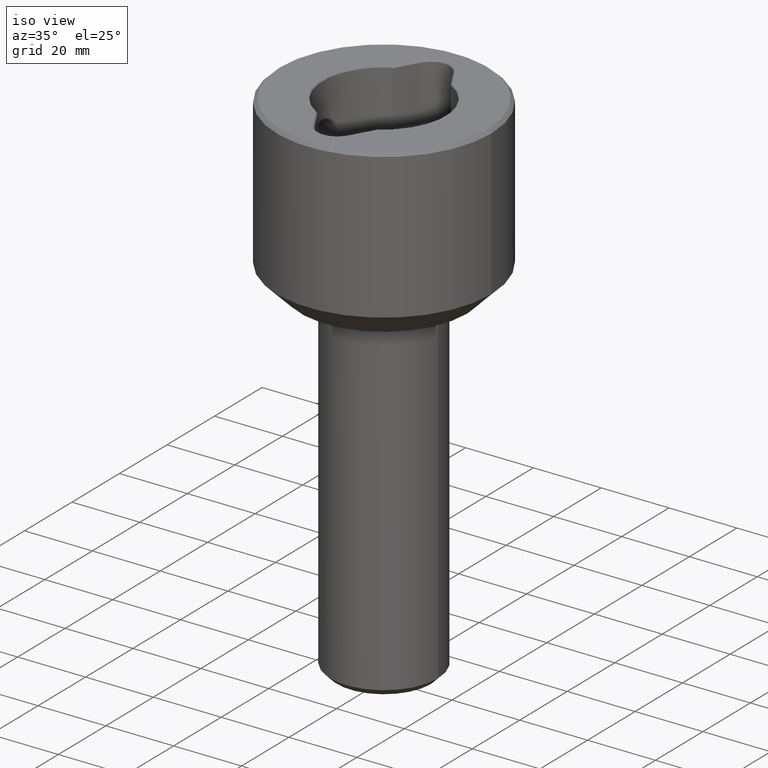
[diagram: clean part render]
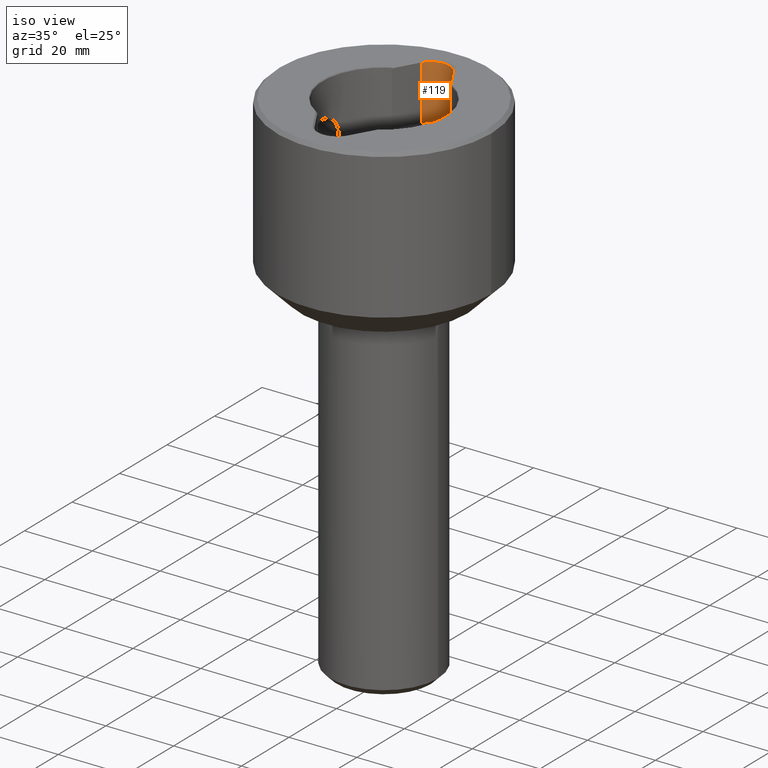
[diagram: same view with one face highlighted and labeled with its STEP entity id]
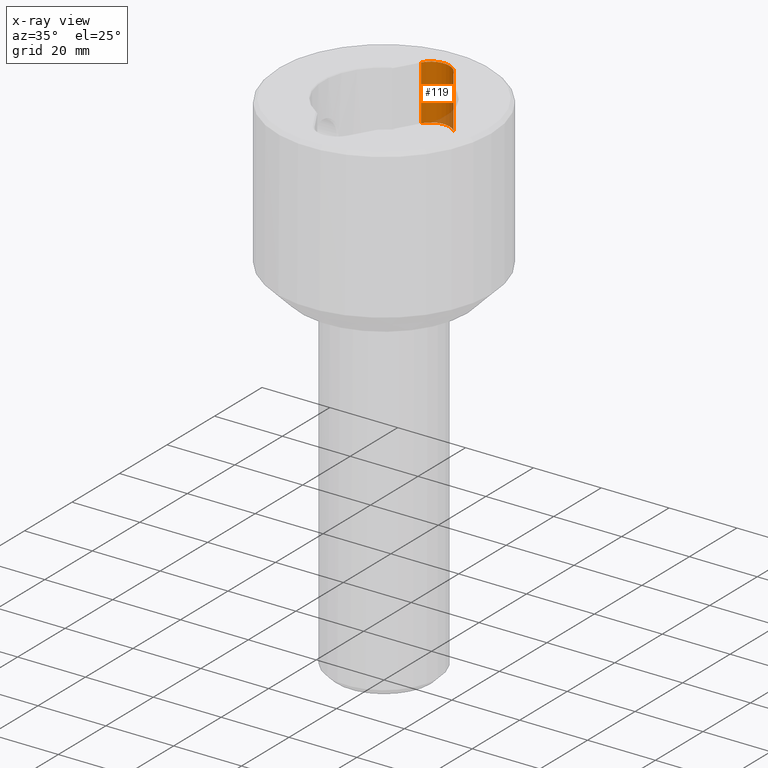
[diagram: x-ray of the same camera — body ghosted, the highlighted face saturated]
A machine part, iso view. The second image highlights one B-rep face of the part: STEP entity #119.
The next image is the same camera in x-ray: the body ghosted, the highlighted face saturated — about 8% of this face is hidden behind the body in this view.
In plain terms, the highlighted cylindrical surface (edge-blend (fillet) strip) has radius 5.5 mm, axis along (-0, -0, 1).
Its self-contained STEP definition (entity closure, byte-faithful):
#85 = EDGE_CURVE ( 'NONE', #1120, #1266, #1155, .T. ) ;
#119 = ADVANCED_FACE ( 'NONE', ( #602 ), #1711, .F. ) ;
#138 = EDGE_CURVE ( 'NONE', #1329, #1120, #1478, .T. ) ;
#237 = DIRECTION ( 'NONE',  ( -1.000000000000000000, 0.0000000000000000000, 0.0000000000000000000 ) ) ;
#274 = CARTESIAN_POINT ( 'NONE',  ( 4.763139720814414169, 22.45000000000001705, -16.60000000005684484 ) ) ;
#294 = EDGE_CURVE ( 'NONE', #1329, #1458, #484, .T. ) ;
#351 = ORIENTED_EDGE ( 'NONE', *, *, #888, .F. ) ;
#355 = CARTESIAN_POINT ( 'NONE',  ( -8.673617379884035472E-15, 19.70000000000003837, -0.4000000000568444403 ) ) ;
#411 = ORIENTED_EDGE ( 'NONE', *, *, #138, .T. ) ;
#474 = DIRECTION ( 'NONE',  ( -0.0000000000000000000, -0.0000000000000000000, 1.000000000000000000 ) ) ;
#484 = CIRCLE ( 'NONE', #975, 5.500000000000000000 ) ;
#526 = VECTOR ( 'NONE', #1407, 1000.000000000000000 ) ;
#568 = EDGE_LOOP ( 'NONE', ( #411, #1079, #351, #967 ) ) ;
#592 = DIRECTION ( 'NONE',  ( 1.000000000000000000, 0.0000000000000000000, 0.0000000000000000000 ) ) ;
#602 = FACE_OUTER_BOUND ( 'NONE', #568, .T. ) ;
#636 = CARTESIAN_POINT ( 'NONE',  ( -4.763139720814429268, 22.45000000000001705, -16.60000000005684484 ) ) ;
#733 = CARTESIAN_POINT ( 'NONE',  ( 4.763139720814414169, 22.45000000000001705, -16.60000000005684484 ) ) ;
#772 = LINE ( 'NONE', #636, #1403 ) ;
#888 = EDGE_CURVE ( 'NONE', #1458, #1266, #772, .T. ) ;
#895 = CARTESIAN_POINT ( 'NONE',  ( -8.673617379884035472E-15, 19.70000000000003837, -16.60000000005684484 ) ) ;
#948 = CARTESIAN_POINT ( 'NONE',  ( 4.763139720814414169, 22.45000000000001705, -0.4000000000568514347 ) ) ;
#967 = ORIENTED_EDGE ( 'NONE', *, *, #294, .F. ) ;
#975 = AXIS2_PLACEMENT_3D ( 'NONE', #895, #1029, #237 ) ;
#1029 = DIRECTION ( 'NONE',  ( 0.0000000000000000000, 0.0000000000000000000, 1.000000000000000000 ) ) ;
#1079 = ORIENTED_EDGE ( 'NONE', *, *, #85, .T. ) ;
#1120 = VERTEX_POINT ( 'NONE', #948 ) ;
#1138 = CARTESIAN_POINT ( 'NONE',  ( -8.673617379884035472E-15, 19.70000000000003837, -16.60000000005684484 ) ) ;
#1139 = CARTESIAN_POINT ( 'NONE',  ( -4.763139720814429268, 22.45000000000001705, -16.60000000005684484 ) ) ;
#1155 = CIRCLE ( 'NONE', #1612, 5.500000000000000000 ) ;
#1266 = VERTEX_POINT ( 'NONE', #1292 ) ;
#1273 = DIRECTION ( 'NONE',  ( 0.0000000000000000000, 0.0000000000000000000, 1.000000000000000000 ) ) ;
#1292 = CARTESIAN_POINT ( 'NONE',  ( -4.763139720814429268, 22.45000000000001705, -0.4000000000568514347 ) ) ;
#1329 = VERTEX_POINT ( 'NONE', #274 ) ;
#1403 = VECTOR ( 'NONE', #1729, 1000.000000000000000 ) ;
#1407 = DIRECTION ( 'NONE',  ( -0.0000000000000000000, -0.0000000000000000000, 1.000000000000000000 ) ) ;
#1437 = AXIS2_PLACEMENT_3D ( 'NONE', #1138, #474, #1558 ) ;
#1458 = VERTEX_POINT ( 'NONE', #1139 ) ;
#1478 = LINE ( 'NONE', #733, #526 ) ;
#1558 = DIRECTION ( 'NONE',  ( 1.000000000000000000, 0.0000000000000000000, 0.0000000000000000000 ) ) ;
#1612 = AXIS2_PLACEMENT_3D ( 'NONE', #355, #1273, #592 ) ;
#1711 = CYLINDRICAL_SURFACE ( 'NONE', #1437, 5.500000000000000000 ) ;
#1729 = DIRECTION ( 'NONE',  ( -0.0000000000000000000, -0.0000000000000000000, 1.000000000000000000 ) ) ;